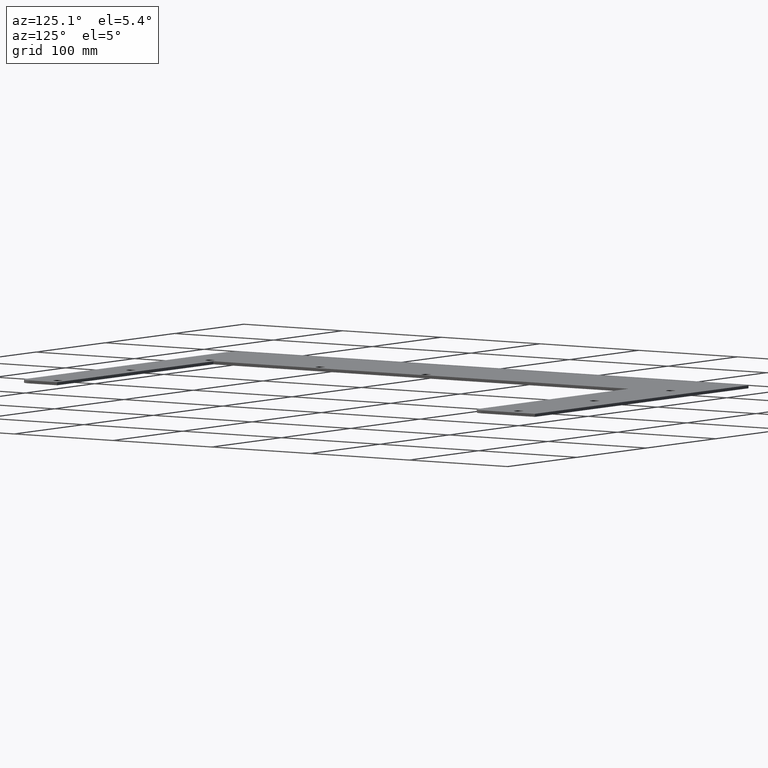
[diagram: clean part render]
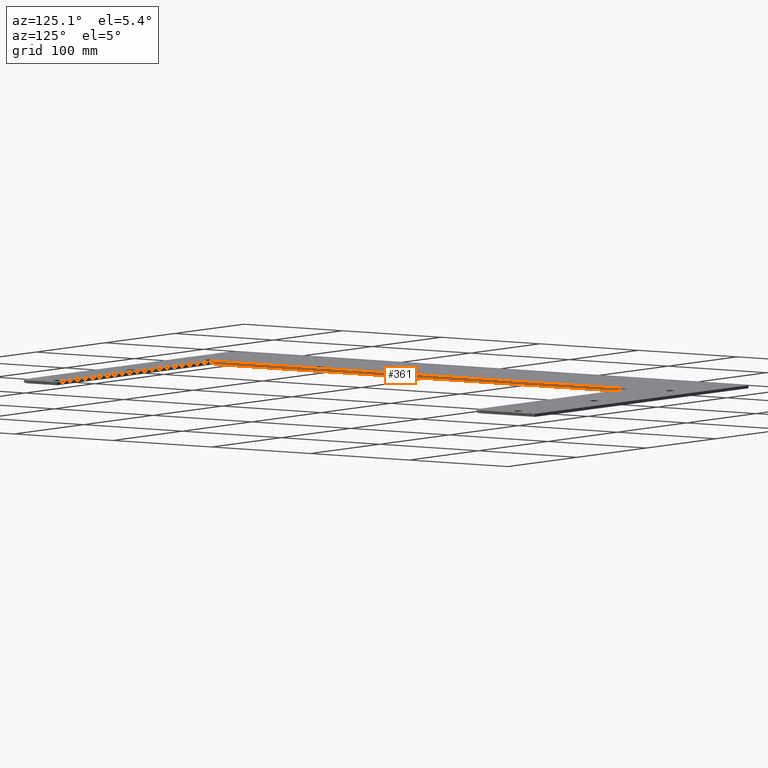
[diagram: same view with one face highlighted and labeled with its STEP entity id]
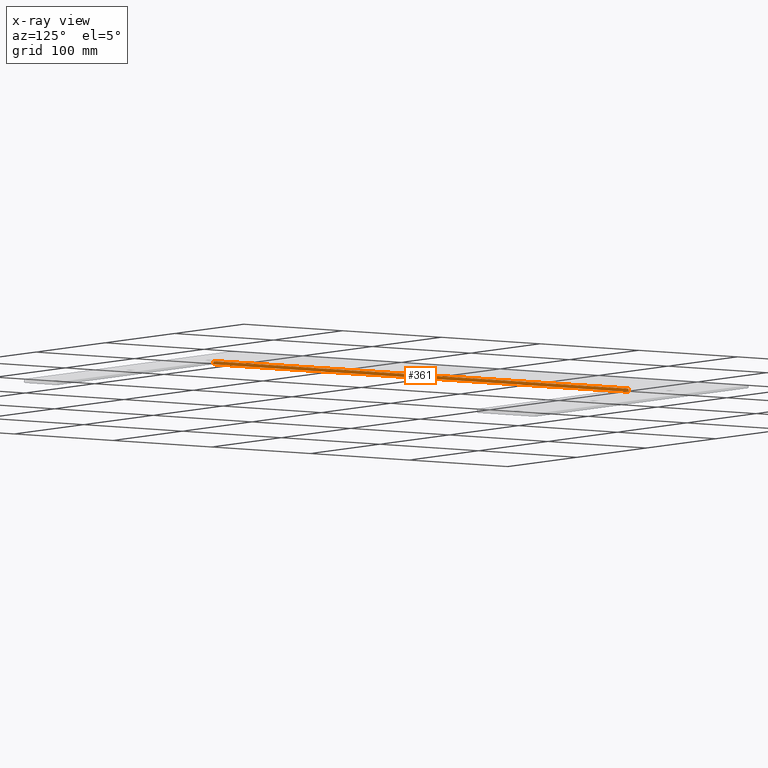
[diagram: x-ray of the same camera — body ghosted, the highlighted face saturated]
A machine part, auxiliary view. The second image highlights one B-rep face of the part: STEP entity #361.
The next image is the same camera in x-ray: the body ghosted, the highlighted face saturated — about 0% of this face is hidden behind the body in this view.
In plain terms, the highlighted planar face has unit normal (-1, -0, 0).
Its self-contained STEP definition (entity closure, byte-faithful):
#1 = CARTESIAN_POINT ( 'NONE',  ( 3.250000000000003997, 0.0000000000000000000, 0.1000000000000000056 ) ) ;
#7 = DIRECTION ( 'NONE',  ( 1.319733330272589941E-16, -1.000000000000000000, 0.0000000000000000000 ) ) ;
#15 = EDGE_CURVE ( 'NONE', #389, #518, #517, .T. ) ;
#23 = ORIENTED_EDGE ( 'NONE', *, *, #605, .F. ) ;
#42 = EDGE_CURVE ( 'NONE', #518, #429, #231, .T. ) ;
#47 = DIRECTION ( 'NONE',  ( -0.0000000000000000000, -0.0000000000000000000, -1.000000000000000000 ) ) ;
#75 = LINE ( 'NONE', #198, #368 ) ;
#125 = AXIS2_PLACEMENT_3D ( 'NONE', #610, #727, #213 ) ;
#160 = VECTOR ( 'NONE', #47, 39.37007874015748143 ) ;
#198 = CARTESIAN_POINT ( 'NONE',  ( 3.250000000000003997, 18.06000000000000227, 0.0000000000000000000 ) ) ;
#213 = DIRECTION ( 'NONE',  ( 1.319733330272589941E-16, -1.000000000000000000, 0.0000000000000000000 ) ) ;
#221 = CARTESIAN_POINT ( 'NONE',  ( 3.250000000000003997, 18.06000000000000227, 0.1000000000000000056 ) ) ;
#222 = ORIENTED_EDGE ( 'NONE', *, *, #42, .F. ) ;
#231 = LINE ( 'NONE', #221, #160 ) ;
#237 = VECTOR ( 'NONE', #344, 39.37007874015748143 ) ;
#307 = CARTESIAN_POINT ( 'NONE',  ( 3.250000000000004441, 1.500000000000000444, 0.0000000000000000000 ) ) ;
#320 = FACE_OUTER_BOUND ( 'NONE', #687, .T. ) ;
#344 = DIRECTION ( 'NONE',  ( -0.0000000000000000000, 1.000000000000000000, 0.0000000000000000000 ) ) ;
#355 = CARTESIAN_POINT ( 'NONE',  ( 3.250000000000006217, 1.500000000000000888, 0.1000000000000000056 ) ) ;
#359 = ORIENTED_EDGE ( 'NONE', *, *, #657, .F. ) ;
#361 = ADVANCED_FACE ( 'NONE', ( #320 ), #674, .F. ) ;
#364 = LINE ( 'NONE', #355, #548 ) ;
#368 = VECTOR ( 'NONE', #7, 39.37007874015748143 ) ;
#389 = VERTEX_POINT ( 'NONE', #551 ) ;
#418 = ORIENTED_EDGE ( 'NONE', *, *, #15, .F. ) ;
#429 = VERTEX_POINT ( 'NONE', #555 ) ;
#517 = LINE ( 'NONE', #1, #237 ) ;
#518 = VERTEX_POINT ( 'NONE', #534 ) ;
#534 = CARTESIAN_POINT ( 'NONE',  ( 3.250000000000003997, 18.05999999999999872, 0.1000000000000000056 ) ) ;
#548 = VECTOR ( 'NONE', #594, 39.37007874015748143 ) ;
#551 = CARTESIAN_POINT ( 'NONE',  ( 3.250000000000004441, 1.500000000000000444, 0.1000000000000000056 ) ) ;
#555 = CARTESIAN_POINT ( 'NONE',  ( 3.250000000000003997, 18.05999999999999872, 0.0000000000000000000 ) ) ;
#594 = DIRECTION ( 'NONE',  ( 0.0000000000000000000, 0.0000000000000000000, 1.000000000000000000 ) ) ;
#605 = EDGE_CURVE ( 'NONE', #429, #619, #75, .T. ) ;
#610 = CARTESIAN_POINT ( 'NONE',  ( 3.250000000000003997, 18.06000000000000227, 0.1000000000000000056 ) ) ;
#619 = VERTEX_POINT ( 'NONE', #307 ) ;
#657 = EDGE_CURVE ( 'NONE', #619, #389, #364, .T. ) ;
#674 = PLANE ( 'NONE',  #125 ) ;
#687 = EDGE_LOOP ( 'NONE', ( #222, #418, #359, #23 ) ) ;
#727 = DIRECTION ( 'NONE',  ( -1.000000000000000000, -1.319733330272589941E-16, 0.0000000000000000000 ) ) ;